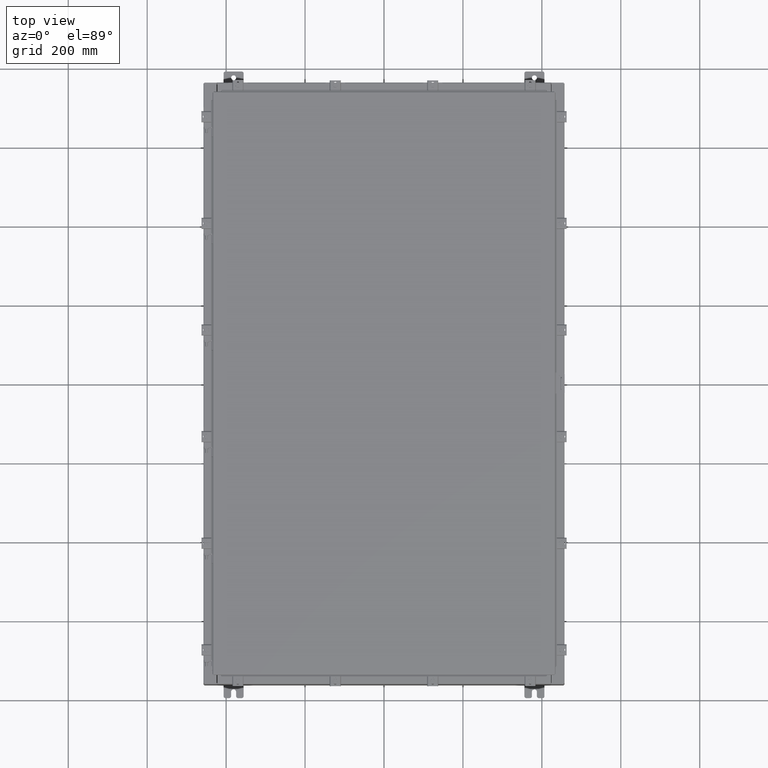
[diagram: clean part render]
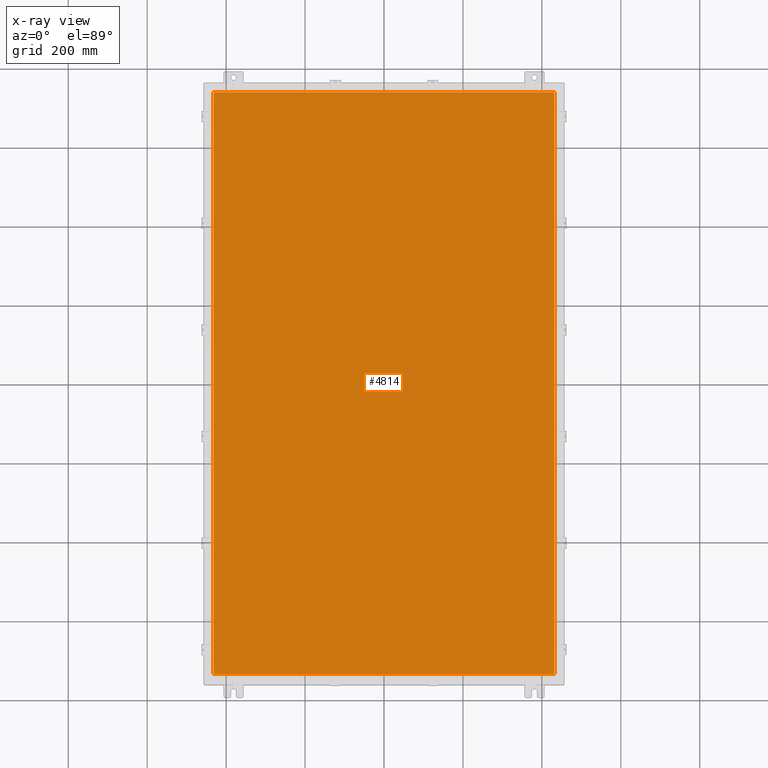
[diagram: x-ray — body ghosted, one internal face saturated and labeled with its STEP entity id]
A machine part, top view, then the same camera in x-ray: the body is ghosted and one INTERNAL B-rep face — a face not visible from any outside direction — is saturated and labeled: STEP entity #4814.
In plain terms, the highlighted planar face has unit normal (0, 0, -1).
Its self-contained STEP definition (entity closure, byte-faithful):
#509 = CARTESIAN_POINT ( 'NONE',  ( -16.99029999999999800, -29.00630000000000300, -0.07470000000000000300 ) ) ;
#1886 = LINE ( 'NONE', #12640, #6823 ) ;
#2251 = CARTESIAN_POINT ( 'NONE',  ( -16.99029999999999800, 29.00630000000000000, -0.07470000000000000300 ) ) ;
#3293 = LINE ( 'NONE', #20242, #8294 ) ;
#4287 = LINE ( 'NONE', #25889, #9999 ) ;
#4814 = ADVANCED_FACE ( 'NONE', ( #19839 ), #22094, .T. ) ;
#5746 = VECTOR ( 'NONE', #20259, 39.37007874015748100 ) ;
#6823 = VECTOR ( 'NONE', #25421, 39.37007874015748100 ) ;
#7024 = VERTEX_POINT ( 'NONE', #17528 ) ;
#8294 = VECTOR ( 'NONE', #24592, 39.37007874015748100 ) ;
#9995 = CARTESIAN_POINT ( 'NONE',  ( 16.99030000000000500, 29.00630000000000000, -0.07470000000000000300 ) ) ;
#9999 = VECTOR ( 'NONE', #24261, 39.37007874015748100 ) ;
#10748 = AXIS2_PLACEMENT_3D ( 'NONE', #21338, #20997, #20382 ) ;
#12640 = CARTESIAN_POINT ( 'NONE',  ( 16.99030000000000100, 29.00630000000000300, -0.07469999999999804600 ) ) ;
#12869 = EDGE_CURVE ( 'NONE', #13887, #22091, #1886, .T. ) ;
#13887 = VERTEX_POINT ( 'NONE', #9995 ) ;
#14791 = EDGE_CURVE ( 'NONE', #7024, #13887, #27159, .T. ) ;
#15742 = ORIENTED_EDGE ( 'NONE', *, *, #12869, .F. ) ;
#17528 = CARTESIAN_POINT ( 'NONE',  ( 16.99030000000000500, -29.00630000000000300, -0.07470000000000000300 ) ) ;
#18697 = EDGE_CURVE ( 'NONE', #19415, #7024, #3293, .T. ) ;
#19271 = ORIENTED_EDGE ( 'NONE', *, *, #14791, .F. ) ;
#19415 = VERTEX_POINT ( 'NONE', #509 ) ;
#19839 = FACE_OUTER_BOUND ( 'NONE', #23274, .T. ) ;
#20242 = CARTESIAN_POINT ( 'NONE',  ( -16.99029999999999400, -29.00630000000000700, -0.07469999999999804600 ) ) ;
#20259 = DIRECTION ( 'NONE',  ( 0.0000000000000000000, 1.000000000000000000, 0.0000000000000000000 ) ) ;
#20382 = DIRECTION ( 'NONE',  ( -1.000000000000000000, 0.0000000000000000000, -0.0000000000000000000 ) ) ;
#20997 = DIRECTION ( 'NONE',  ( 0.0000000000000000000, 0.0000000000000000000, -1.000000000000000000 ) ) ;
#21338 = CARTESIAN_POINT ( 'NONE',  ( 0.0000000000000000000, 0.0000000000000000000, -0.07470000000000000300 ) ) ;
#22091 = VERTEX_POINT ( 'NONE', #2251 ) ;
#22094 = PLANE ( 'NONE',  #10748 ) ;
#22891 = ORIENTED_EDGE ( 'NONE', *, *, #25583, .F. ) ;
#23274 = EDGE_LOOP ( 'NONE', ( #19271, #24811, #22891, #15742 ) ) ;
#24261 = DIRECTION ( 'NONE',  ( 0.0000000000000000000, -1.000000000000000000, 0.0000000000000000000 ) ) ;
#24592 = DIRECTION ( 'NONE',  ( 1.000000000000000000, -0.0000000000000000000, -0.0000000000000000000 ) ) ;
#24811 = ORIENTED_EDGE ( 'NONE', *, *, #18697, .F. ) ;
#25421 = DIRECTION ( 'NONE',  ( -1.000000000000000000, -0.0000000000000000000, -0.0000000000000000000 ) ) ;
#25583 = EDGE_CURVE ( 'NONE', #22091, #19415, #4287, .T. ) ;
#25889 = CARTESIAN_POINT ( 'NONE',  ( -16.99029999999999800, 29.00629999999998900, -0.07470000000000019700 ) ) ;
#26724 = CARTESIAN_POINT ( 'NONE',  ( 16.99030000000000500, -29.00630000000000000, -0.07470000000000019700 ) ) ;
#27159 = LINE ( 'NONE', #26724, #5746 ) ;